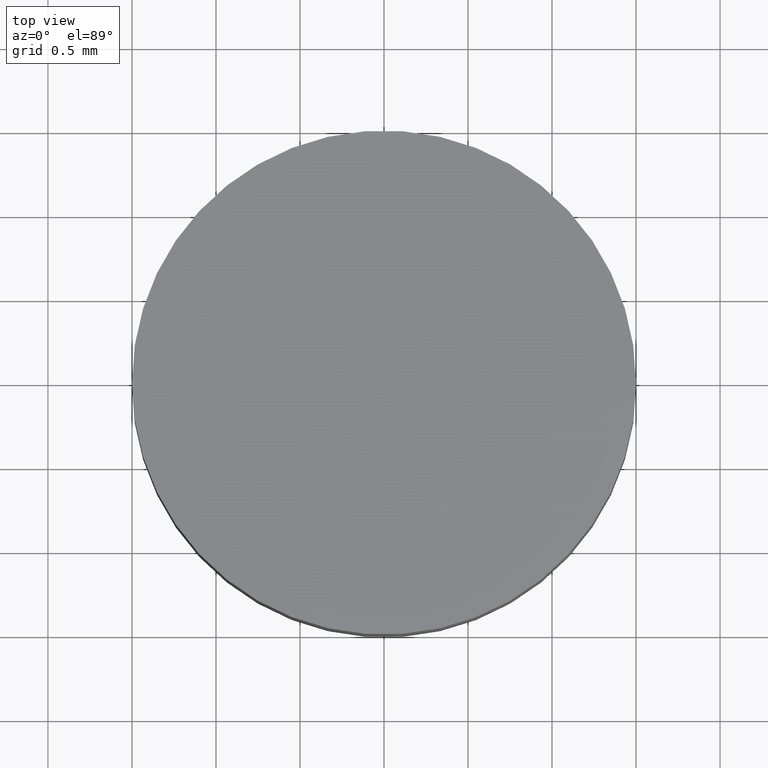
[diagram: clean part render]
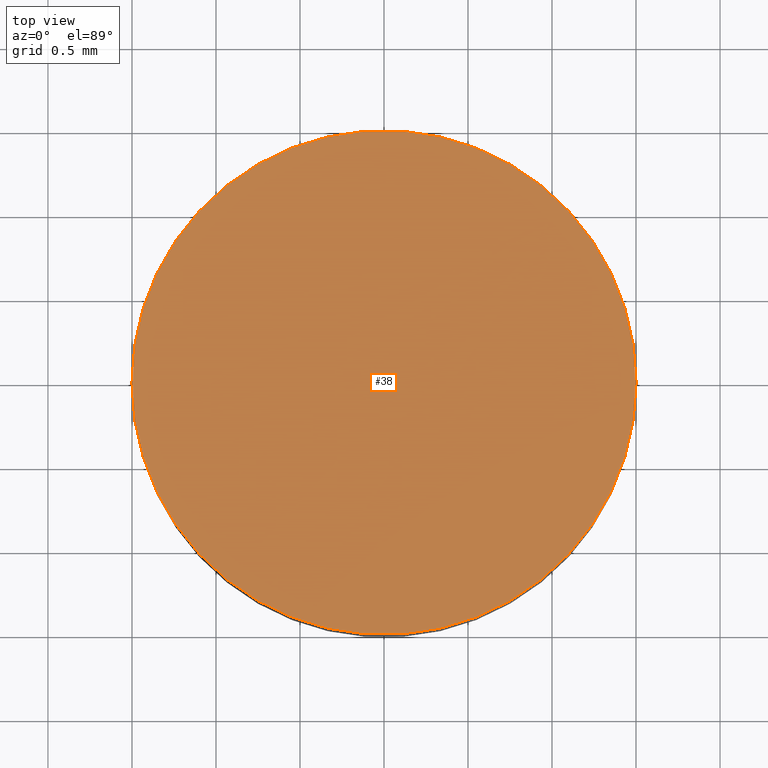
[diagram: same view with one face highlighted and labeled with its STEP entity id]
A machine part, top view. The second image highlights one B-rep face of the part: STEP entity #38.
In plain terms, the highlighted planar face has unit normal (0, 0, 1).
Its self-contained STEP definition (entity closure, byte-faithful):
#3 = VERTEX_POINT ( 'NONE', #110 ) ;
#8 = FACE_OUTER_BOUND ( 'NONE', #75, .T. ) ;
#9 = DIRECTION ( 'NONE',  ( 0.0000000000000000000, 0.0000000000000000000, 1.000000000000000000 ) ) ;
#24 = ORIENTED_EDGE ( 'NONE', *, *, #115, .T. ) ;
#28 = CARTESIAN_POINT ( 'NONE',  ( 0.0000000000000000000, 0.0000000000000000000, 1.000000000000000000 ) ) ;
#29 = AXIS2_PLACEMENT_3D ( 'NONE', #138, #54, #123 ) ;
#33 = CARTESIAN_POINT ( 'NONE',  ( 0.0000000000000000000, 0.0000000000000000000, 1.000000000000000000 ) ) ;
#35 = DIRECTION ( 'NONE',  ( 1.000000000000000000, 0.0000000000000000000, -0.0000000000000000000 ) ) ;
#38 = ADVANCED_FACE ( 'NONE', ( #8 ), #120, .T. ) ;
#51 = ORIENTED_EDGE ( 'NONE', *, *, #106, .T. ) ;
#54 = DIRECTION ( 'NONE',  ( 0.0000000000000000000, 0.0000000000000000000, 1.000000000000000000 ) ) ;
#56 = CIRCLE ( 'NONE', #111, 1.500000000000000200 ) ;
#63 = DIRECTION ( 'NONE',  ( 1.000000000000000000, 0.0000000000000000000, 0.0000000000000000000 ) ) ;
#75 = EDGE_LOOP ( 'NONE', ( #24, #51 ) ) ;
#81 = CIRCLE ( 'NONE', #29, 1.500000000000000200 ) ;
#92 = DIRECTION ( 'NONE',  ( 0.0000000000000000000, 0.0000000000000000000, 1.000000000000000000 ) ) ;
#98 = AXIS2_PLACEMENT_3D ( 'NONE', #33, #9, #35 ) ;
#100 = VERTEX_POINT ( 'NONE', #109 ) ;
#106 = EDGE_CURVE ( 'NONE', #100, #3, #56, .T. ) ;
#109 = CARTESIAN_POINT ( 'NONE',  ( 1.500000000000000200, 1.836970198721030200E-016, 1.000000000000000000 ) ) ;
#110 = CARTESIAN_POINT ( 'NONE',  ( -1.500000000000000200, 0.0000000000000000000, 1.000000000000000000 ) ) ;
#111 = AXIS2_PLACEMENT_3D ( 'NONE', #28, #92, #63 ) ;
#115 = EDGE_CURVE ( 'NONE', #3, #100, #81, .T. ) ;
#120 = PLANE ( 'NONE',  #98 ) ;
#123 = DIRECTION ( 'NONE',  ( 1.000000000000000000, 0.0000000000000000000, 0.0000000000000000000 ) ) ;
#138 = CARTESIAN_POINT ( 'NONE',  ( 0.0000000000000000000, 0.0000000000000000000, 1.000000000000000000 ) ) ;